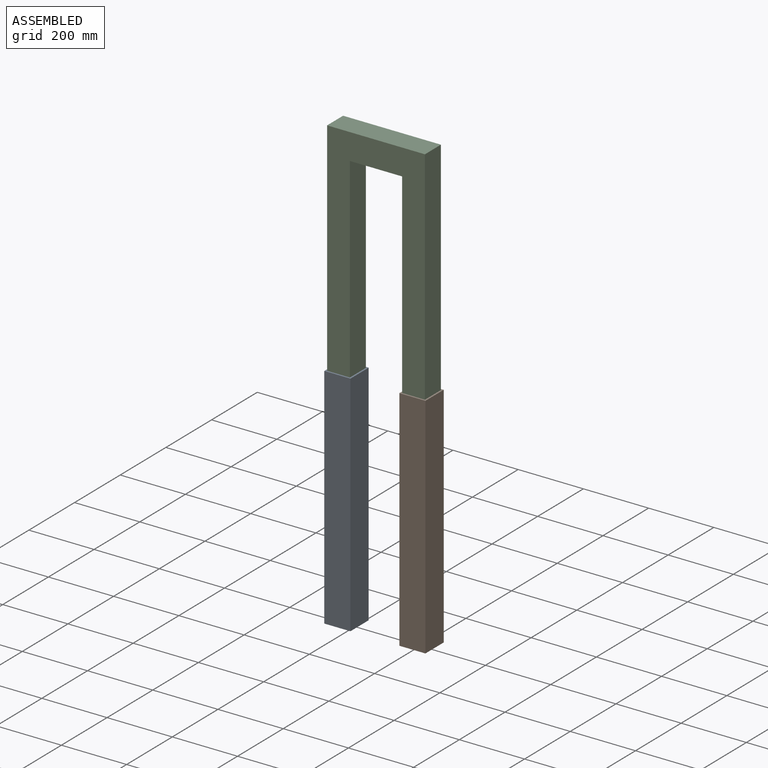
[diagram: assembled view]
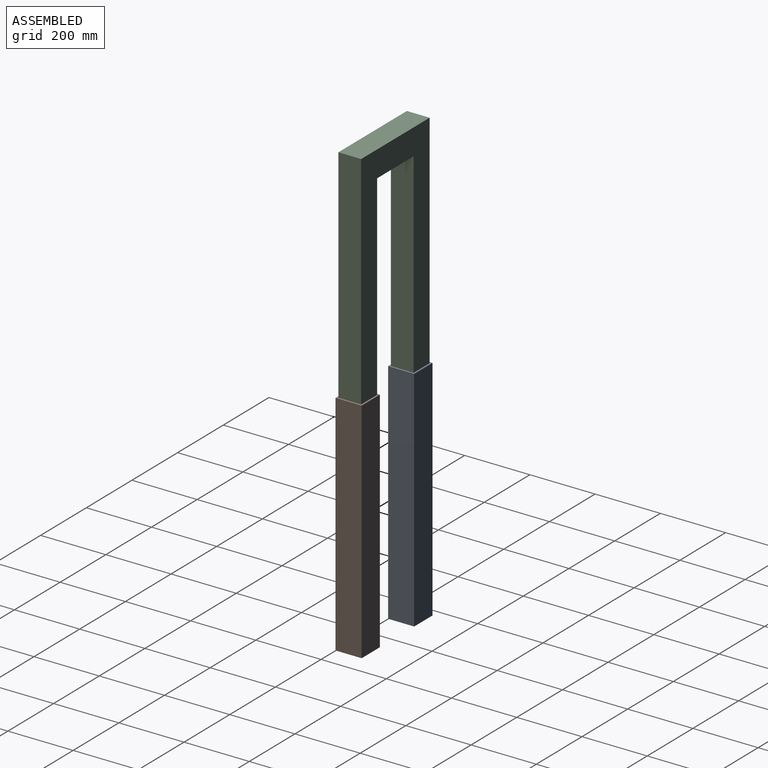
[diagram: assembled view, second angle]
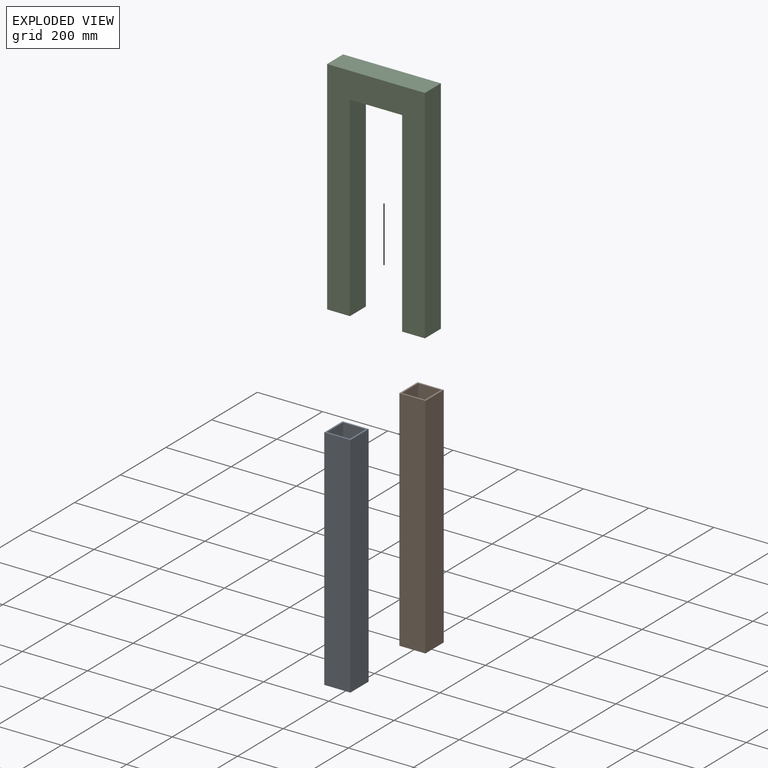
[diagram: exploded view]
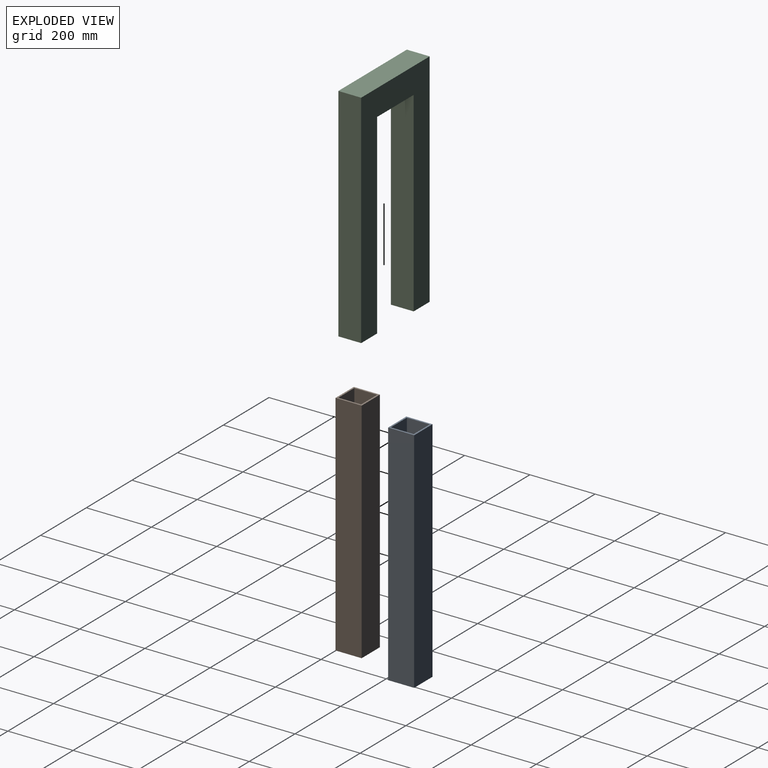
[diagram: exploded view, second angle]
ASSEMBLY  parts=3 mates=2
PART A: 10 faces, bbox 80x80x700 mm
  f0: plane 700x80mm, normal (0,1,0), area 56000mm2, adj f1,f7,f8,f9
  f1: plane 700x80mm, normal (-1,0,0), area 56000mm2, adj f0,f2,f8,f9
  f2: plane 700x80mm, normal (0,-1,0), area 56000mm2, adj f1,f7,f8,f9
  f3: plane 700x70mm, normal (1,0,0), area 49000mm2, adj f4,f6,f8,f9
  f4: plane 700x70mm, normal (0,-1,0), area 49000mm2, adj f3,f5,f8,f9
  f5: plane 700x70mm, normal (-1,0,0), area 49000mm2, adj f4,f6,f8,f9
  f6: plane 700x70mm, normal (0,1,0), area 49000mm2, adj f3,f5,f8,f9
  f7: plane 700x80mm, normal (1,0,0), area 56000mm2, adj f0,f2,f8,f9
  f8: plane 80x80mm, normal (0,0,1), area 1500mm2, adj f0,f1,f2,f3,f4,f5,f6,f7
  f9: plane 80x80mm, normal (0,0,-1), area 1500mm2, adj f0,f1,f2,f3,f4,f5,f6,f7
PART B: same geometry as A
PART C: 18 faces, bbox 300x70x680 mm
  f0: plane 70x70mm, normal (0,0,-1), area 675mm2, adj f2,f3,f4,f5,f10,f11,f12,f13
  f1: plane 70x70mm, normal (0,0,-1), area 675mm2, adj f2,f4,f6,f7,f10,f12,f14,f15
  f2: plane 680x300mm, normal (0,1,0), area 108000mm2, adj f0,f1,f3,f5,f6,f7,f8,f9
  f3: plane 680x70mm, normal (-1,0,0), area 47600mm2, adj f0,f2,f4,f9
  f4: plane 680x300mm, normal (0,-1,0), area 108000mm2, adj f0,f1,f3,f5,f6,f7,f8,f9
  f5: plane 600x70mm, normal (1,0,0), area 42000mm2, adj f0,f2,f4,f8
  f6: plane 600x70mm, normal (-1,0,0), area 42000mm2, adj f1,f2,f4,f8
  f7: plane 680x70mm, normal (1,0,0), area 47600mm2, adj f1,f2,f4,f9
  f8: plane 160x70mm, normal (0,0,-1), area 11200mm2, adj f2,f4,f5,f6
  f9: plane 300x70mm, normal (0,0,1), area 21000mm2, adj f2,f3,f4,f7
  f10: plane 677.5x295mm, normal (0,-1,0), area 100450mm2, adj f0,f1,f11,f13,f14,f15,f16,f17
  f11: plane 677.5x65mm, normal (1,0,0), area 44037.5mm2, adj f0,f10,f12,f17
  f12: plane 677.5x295mm, normal (0,1,0), area 100450mm2, adj f0,f1,f11,f13,f14,f15,f16,f17
  f13: plane 602.5x65mm, normal (-1,0,0), area 39162.5mm2, adj f0,f10,f12,f16
  f14: plane 602.5x65mm, normal (1,0,0), area 39162.5mm2, adj f1,f10,f12,f16
  f15: plane 677.5x65mm, normal (-1,0,0), area 44037.5mm2, adj f1,f10,f12,f17
  f16: plane 165x65mm, normal (0,0,1), area 10725mm2, adj f10,f12,f13,f14
  f17: plane 295x65mm, normal (0,0,-1), area 19175mm2, adj f10,f11,f12,f15
PLACE A rot(axis=(1,0,0),180deg) t=(-158.3,80.73,-489.52)mm
PLACE B t=(71.7,68.88,-1189.52)mm
PLACE C t=(-155.96,70.49,-489.52)mm
MATE slider B.f8 <-> C.f1  axis (0,0,1) through (31.7,74.81,-489.52)mm
MATE slider C.f0 <-> A.f9  axis (0,0,-1) through (-198.3,74.81,-489.52)mm
